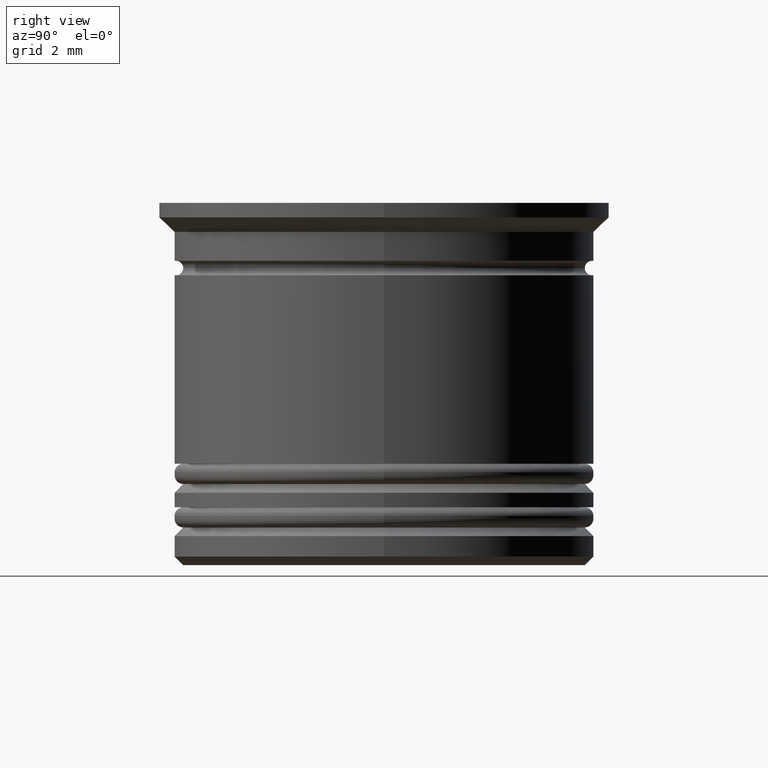
[diagram: clean part render]
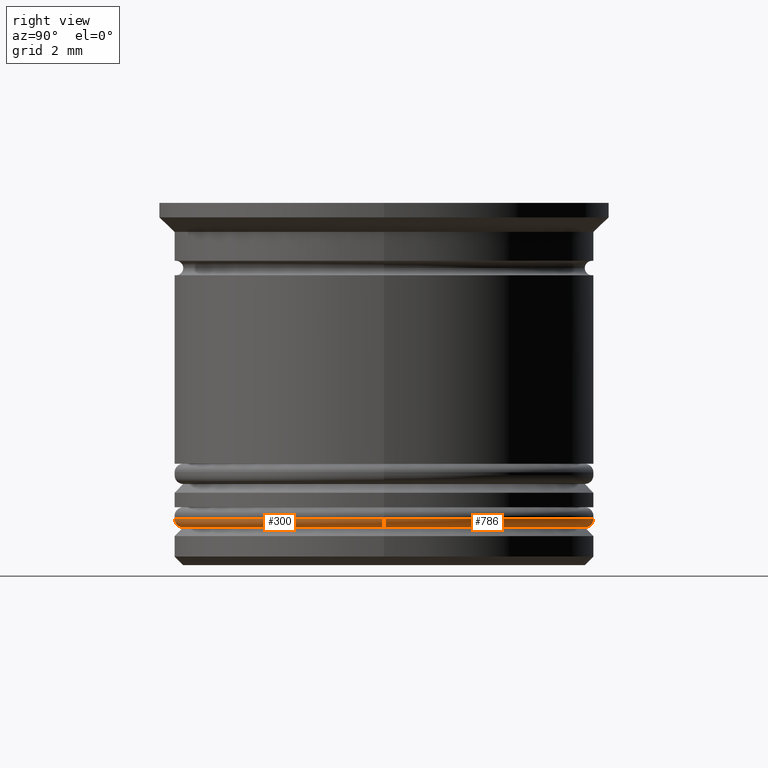
[diagram: same view with one multi-face feature highlighted, each face labeled with its STEP entity id]
A machine part, right view. The highlighted faces form ONE feature: a constant-radius fillet chain: 2 tangent blend faces with common blend radius 0.3 mm. The faces share edges in the B-rep.
Their STEP definitions:
[1] entity #786 (Torus):
#19 = CARTESIAN_POINT ( 'NONE',  ( -6.950000000000000178, 8.694992273946207746E-16, -11.20000000000000817 ) ) ;
#26 = CIRCLE ( 'NONE', #1765, 0.2999999999999999334 ) ;
#404 = TOROIDAL_SURFACE ( 'NONE', #563, 6.950000000000000178, 0.2999999999999999889 ) ;
#411 = DIRECTION ( 'NONE',  ( 1.224646799147353207E-16, 1.000000000000000000, -0.000000000000000000 ) ) ;
#451 = DIRECTION ( 'NONE',  ( 0.000000000000000000, 0.000000000000000000, 1.000000000000000000 ) ) ;
#468 = EDGE_CURVE ( 'NONE', #1257, #1475, #655, .T. ) ;
#533 = DIRECTION ( 'NONE',  ( 0.000000000000000000, -1.000000000000000000, 0.000000000000000000 ) ) ;
#563 = AXIS2_PLACEMENT_3D ( 'NONE', #774, #1706, #797 ) ;
#570 = CARTESIAN_POINT ( 'NONE',  ( -6.950000000000000178, 8.511295254074105418E-16, -10.90000000000000746 ) ) ;
#605 = CARTESIAN_POINT ( 'NONE',  ( 0.000000000000000000, 0.000000000000000000, -10.90000000000000746 ) ) ;
#655 = CIRCLE ( 'NONE', #1764, 6.950000000000000178 ) ;
#702 = DIRECTION ( 'NONE',  ( 1.000000000000000000, 0.000000000000000000, 0.000000000000000000 ) ) ;
#706 = CARTESIAN_POINT ( 'NONE',  ( 6.950000000000000178, 0.000000000000000000, -11.20000000000000817 ) ) ;
#715 = DIRECTION ( 'NONE',  ( -1.000000000000000000, 1.224646799147350249E-16, 0.000000000000000000 ) ) ;
#721 = AXIS2_PLACEMENT_3D ( 'NONE', #605, #451, #1510 ) ;
#774 = CARTESIAN_POINT ( 'NONE',  ( 0.000000000000000000, 0.000000000000000000, -10.90000000000000746 ) ) ;
#786 = ADVANCED_FACE ( 'NONE', ( #930 ), #404, .T. ) ;
#797 = DIRECTION ( 'NONE',  ( 1.000000000000000000, 0.000000000000000000, 0.000000000000000000 ) ) ;
#906 = VERTEX_POINT ( 'NONE', #1472 ) ;
#930 = FACE_OUTER_BOUND ( 'NONE', #1731, .T. ) ;
#1155 = DIRECTION ( 'NONE',  ( 0.000000000000000000, 0.000000000000000000, -1.000000000000000000 ) ) ;
#1257 = VERTEX_POINT ( 'NONE', #19 ) ;
#1272 = CARTESIAN_POINT ( 'NONE',  ( 6.950000000000000178, 0.000000000000000000, -10.90000000000000746 ) ) ;
#1325 = EDGE_CURVE ( 'NONE', #1475, #906, #1936, .T. ) ;
#1472 = CARTESIAN_POINT ( 'NONE',  ( 7.250000000000000000, 0.000000000000000000, -10.90000000000000746 ) ) ;
#1475 = VERTEX_POINT ( 'NONE', #706 ) ;
#1493 = DIRECTION ( 'NONE',  ( -0.000000000000000000, -0.000000000000000000, -1.000000000000000000 ) ) ;
#1510 = DIRECTION ( 'NONE',  ( 1.000000000000000000, 0.000000000000000000, 0.000000000000000000 ) ) ;
#1551 = VERTEX_POINT ( 'NONE', #1677 ) ;
#1640 = CIRCLE ( 'NONE', #721, 7.250000000000000000 ) ;
#1656 = CARTESIAN_POINT ( 'NONE',  ( 0.000000000000000000, 0.000000000000000000, -11.20000000000000817 ) ) ;
#1677 = CARTESIAN_POINT ( 'NONE',  ( -7.250000000000000000, 8.878689293818310074E-16, -10.90000000000000746 ) ) ;
#1706 = DIRECTION ( 'NONE',  ( 0.000000000000000000, 0.000000000000000000, 1.000000000000000000 ) ) ;
#1722 = ORIENTED_EDGE ( 'NONE', *, *, #1945, .T. ) ;
#1731 = EDGE_LOOP ( 'NONE', ( #1927, #1722, #1991, #1802 ) ) ;
#1764 = AXIS2_PLACEMENT_3D ( 'NONE', #1656, #1493, #702 ) ;
#1765 = AXIS2_PLACEMENT_3D ( 'NONE', #570, #411, #715 ) ;
#1802 = ORIENTED_EDGE ( 'NONE', *, *, #1325, .F. ) ;
#1856 = EDGE_CURVE ( 'NONE', #906, #1551, #1640, .T. ) ;
#1927 = ORIENTED_EDGE ( 'NONE', *, *, #468, .F. ) ;
#1936 = CIRCLE ( 'NONE', #1964, 0.2999999999999999334 ) ;
#1945 = EDGE_CURVE ( 'NONE', #1257, #1551, #26, .T. ) ;
#1964 = AXIS2_PLACEMENT_3D ( 'NONE', #1272, #533, #1155 ) ;
#1991 = ORIENTED_EDGE ( 'NONE', *, *, #1856, .F. ) ;
[2] entity #300 (Torus):
#19 = CARTESIAN_POINT ( 'NONE',  ( -6.950000000000000178, 8.694992273946207746E-16, -11.20000000000000817 ) ) ;
#26 = CIRCLE ( 'NONE', #1765, 0.2999999999999999334 ) ;
#204 = CARTESIAN_POINT ( 'NONE',  ( 0.000000000000000000, 0.000000000000000000, -10.90000000000000746 ) ) ;
#300 = ADVANCED_FACE ( 'NONE', ( #1075 ), #1559, .T. ) ;
#411 = DIRECTION ( 'NONE',  ( 1.224646799147353207E-16, 1.000000000000000000, -0.000000000000000000 ) ) ;
#470 = EDGE_CURVE ( 'NONE', #1475, #1257, #1125, .T. ) ;
#493 = DIRECTION ( 'NONE',  ( 0.000000000000000000, 0.000000000000000000, 1.000000000000000000 ) ) ;
#497 = CIRCLE ( 'NONE', #1398, 7.250000000000000000 ) ;
#513 = ORIENTED_EDGE ( 'NONE', *, *, #1325, .T. ) ;
#533 = DIRECTION ( 'NONE',  ( 0.000000000000000000, -1.000000000000000000, 0.000000000000000000 ) ) ;
#556 = EDGE_LOOP ( 'NONE', ( #1860, #1974, #513, #1725 ) ) ;
#570 = CARTESIAN_POINT ( 'NONE',  ( -6.950000000000000178, 8.511295254074105418E-16, -10.90000000000000746 ) ) ;
#587 = EDGE_CURVE ( 'NONE', #1551, #906, #497, .T. ) ;
#706 = CARTESIAN_POINT ( 'NONE',  ( 6.950000000000000178, 0.000000000000000000, -11.20000000000000817 ) ) ;
#715 = DIRECTION ( 'NONE',  ( -1.000000000000000000, 1.224646799147350249E-16, 0.000000000000000000 ) ) ;
#717 = AXIS2_PLACEMENT_3D ( 'NONE', #1093, #1702, #951 ) ;
#906 = VERTEX_POINT ( 'NONE', #1472 ) ;
#951 = DIRECTION ( 'NONE',  ( 1.000000000000000000, 0.000000000000000000, 0.000000000000000000 ) ) ;
#1038 = CARTESIAN_POINT ( 'NONE',  ( 0.000000000000000000, 0.000000000000000000, -11.20000000000000817 ) ) ;
#1075 = FACE_OUTER_BOUND ( 'NONE', #556, .T. ) ;
#1093 = CARTESIAN_POINT ( 'NONE',  ( 0.000000000000000000, 0.000000000000000000, -10.90000000000000746 ) ) ;
#1125 = CIRCLE ( 'NONE', #1893, 6.950000000000000178 ) ;
#1155 = DIRECTION ( 'NONE',  ( 0.000000000000000000, 0.000000000000000000, -1.000000000000000000 ) ) ;
#1257 = VERTEX_POINT ( 'NONE', #19 ) ;
#1272 = CARTESIAN_POINT ( 'NONE',  ( 6.950000000000000178, 0.000000000000000000, -10.90000000000000746 ) ) ;
#1325 = EDGE_CURVE ( 'NONE', #1475, #906, #1936, .T. ) ;
#1398 = AXIS2_PLACEMENT_3D ( 'NONE', #204, #493, #1537 ) ;
#1472 = CARTESIAN_POINT ( 'NONE',  ( 7.250000000000000000, 0.000000000000000000, -10.90000000000000746 ) ) ;
#1475 = VERTEX_POINT ( 'NONE', #706 ) ;
#1537 = DIRECTION ( 'NONE',  ( 1.000000000000000000, 0.000000000000000000, 0.000000000000000000 ) ) ;
#1551 = VERTEX_POINT ( 'NONE', #1677 ) ;
#1559 = TOROIDAL_SURFACE ( 'NONE', #717, 6.950000000000000178, 0.2999999999999999889 ) ;
#1661 = DIRECTION ( 'NONE',  ( -0.000000000000000000, -0.000000000000000000, -1.000000000000000000 ) ) ;
#1677 = CARTESIAN_POINT ( 'NONE',  ( -7.250000000000000000, 8.878689293818310074E-16, -10.90000000000000746 ) ) ;
#1702 = DIRECTION ( 'NONE',  ( 0.000000000000000000, 0.000000000000000000, 1.000000000000000000 ) ) ;
#1725 = ORIENTED_EDGE ( 'NONE', *, *, #587, .F. ) ;
#1765 = AXIS2_PLACEMENT_3D ( 'NONE', #570, #411, #715 ) ;
#1860 = ORIENTED_EDGE ( 'NONE', *, *, #1945, .F. ) ;
#1893 = AXIS2_PLACEMENT_3D ( 'NONE', #1038, #1661, #1949 ) ;
#1936 = CIRCLE ( 'NONE', #1964, 0.2999999999999999334 ) ;
#1945 = EDGE_CURVE ( 'NONE', #1257, #1551, #26, .T. ) ;
#1949 = DIRECTION ( 'NONE',  ( 1.000000000000000000, 0.000000000000000000, 0.000000000000000000 ) ) ;
#1964 = AXIS2_PLACEMENT_3D ( 'NONE', #1272, #533, #1155 ) ;
#1974 = ORIENTED_EDGE ( 'NONE', *, *, #470, .F. ) ;